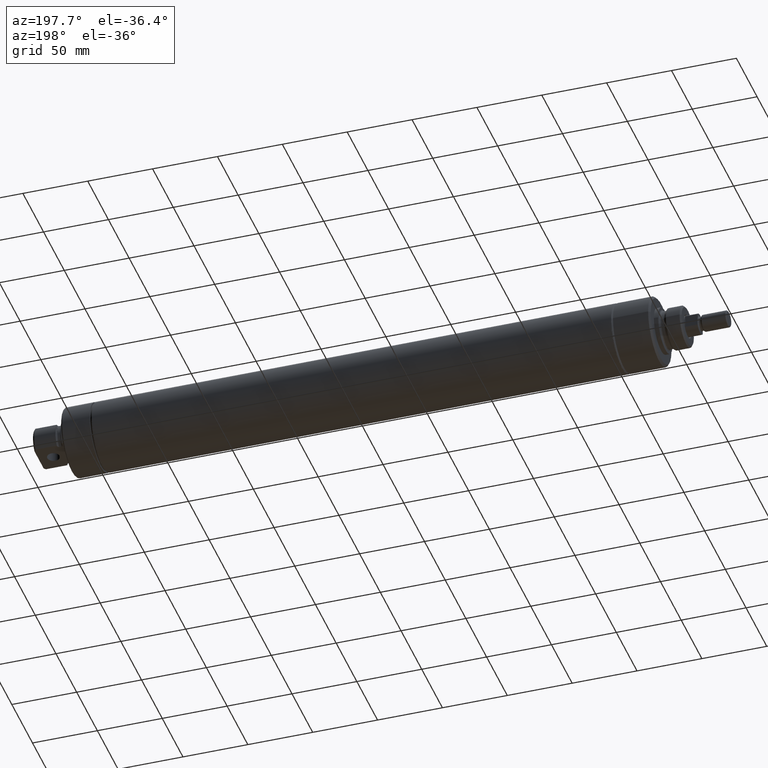
[diagram: clean part render]
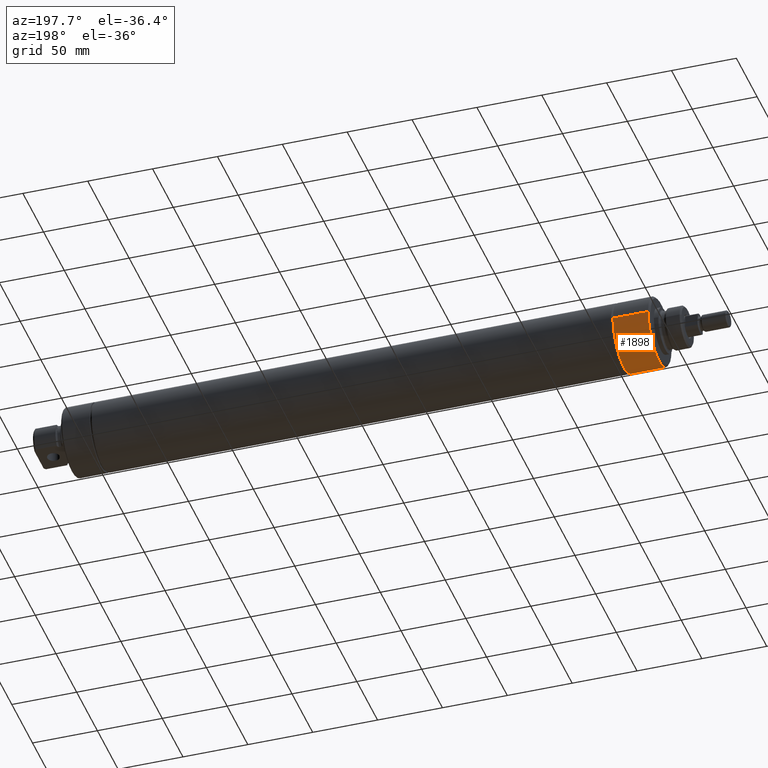
[diagram: same view with one face highlighted and labeled with its STEP entity id]
A machine part, auxiliary view. The second image highlights one B-rep face of the part: STEP entity #1898.
In plain terms, the highlighted cylindrical surface (edge-blend (fillet) strip) has radius 26.543 mm, axis along (1, 0, 0).
Its self-contained STEP definition (entity closure, byte-faithful):
#66 = AXIS2_PLACEMENT_3D ( 'NONE', #5237, #1832, #993 ) ;
#79 = CIRCLE ( 'NONE', #536, 26.54299999999999926 ) ;
#359 = DIRECTION ( 'NONE',  ( 0.000000000000000000, 1.000000000000000000, -6.123233995736766036E-17 ) ) ;
#536 = AXIS2_PLACEMENT_3D ( 'NONE', #1211, #3681, #3199 ) ;
#559 = CARTESIAN_POINT ( 'NONE',  ( 22.09799999999999898, 0.000000000000000000, -26.54299999999999926 ) ) ;
#561 = DIRECTION ( 'NONE',  ( 1.000000000000000000, 0.000000000000000000, 0.000000000000000000 ) ) ;
#641 = ORIENTED_EDGE ( 'NONE', *, *, #3167, .T. ) ;
#816 = VERTEX_POINT ( 'NONE', #1741 ) ;
#862 = EDGE_CURVE ( 'NONE', #5462, #1008, #4026, .T. ) ;
#895 = LINE ( 'NONE', #3960, #4162 ) ;
#993 = DIRECTION ( 'NONE',  ( 0.000000000000000000, 0.000000000000000000, -1.000000000000000000 ) ) ;
#1008 = VERTEX_POINT ( 'NONE', #4201 ) ;
#1116 = EDGE_LOOP ( 'NONE', ( #2426, #641, #3101, #2368 ) ) ;
#1162 = DIRECTION ( 'NONE',  ( 1.000000000000000000, 0.000000000000000000, 0.000000000000000000 ) ) ;
#1211 = CARTESIAN_POINT ( 'NONE',  ( 22.09799999999999898, 0.000000000000000000, 0.000000000000000000 ) ) ;
#1609 = EDGE_CURVE ( 'NONE', #3744, #1008, #2479, .T. ) ;
#1618 = DIRECTION ( 'NONE',  ( 1.000000000000000000, 0.000000000000000000, 0.000000000000000000 ) ) ;
#1741 = CARTESIAN_POINT ( 'NONE',  ( 22.09799999999999187, 3.250579998976819458E-15, 26.54299999999999926 ) ) ;
#1832 = DIRECTION ( 'NONE',  ( 1.000000000000000000, 0.000000000000000000, 0.000000000000000000 ) ) ;
#1898 = ADVANCED_FACE ( 'NONE', ( #4519 ), #3666, .T. ) ;
#2355 = VECTOR ( 'NONE', #1162, 1000.000000000000000 ) ;
#2368 = ORIENTED_EDGE ( 'NONE', *, *, #1609, .F. ) ;
#2426 = ORIENTED_EDGE ( 'NONE', *, *, #2907, .F. ) ;
#2479 = CIRCLE ( 'NONE', #66, 26.54299999999999926 ) ;
#2907 = EDGE_CURVE ( 'NONE', #816, #3744, #895, .T. ) ;
#3101 = ORIENTED_EDGE ( 'NONE', *, *, #862, .T. ) ;
#3167 = EDGE_CURVE ( 'NONE', #816, #5462, #79, .T. ) ;
#3199 = DIRECTION ( 'NONE',  ( 0.000000000000000000, 0.000000000000000000, -1.000000000000000000 ) ) ;
#3496 = CARTESIAN_POINT ( 'NONE',  ( 49.19979999999998910, 3.250579998976819458E-15, 26.54299999999999926 ) ) ;
#3666 = CYLINDRICAL_SURFACE ( 'NONE', #5011, 26.54299999999999926 ) ;
#3681 = DIRECTION ( 'NONE',  ( 1.000000000000000000, 0.000000000000000000, 0.000000000000000000 ) ) ;
#3744 = VERTEX_POINT ( 'NONE', #3496 ) ;
#3960 = CARTESIAN_POINT ( 'NONE',  ( 22.09799999999999187, 3.250579998976819458E-15, 26.54299999999999926 ) ) ;
#4000 = CARTESIAN_POINT ( 'NONE',  ( 22.09799999999999898, 0.000000000000000000, -26.54299999999999926 ) ) ;
#4026 = LINE ( 'NONE', #4000, #2355 ) ;
#4162 = VECTOR ( 'NONE', #561, 1000.000000000000000 ) ;
#4201 = CARTESIAN_POINT ( 'NONE',  ( 49.19980000000000331, 0.000000000000000000, -26.54299999999999926 ) ) ;
#4519 = FACE_OUTER_BOUND ( 'NONE', #1116, .T. ) ;
#5011 = AXIS2_PLACEMENT_3D ( 'NONE', #5372, #1618, #359 ) ;
#5237 = CARTESIAN_POINT ( 'NONE',  ( 49.19980000000000331, 0.000000000000000000, 0.000000000000000000 ) ) ;
#5372 = CARTESIAN_POINT ( 'NONE',  ( 58.72480000000000189, 0.000000000000000000, 0.000000000000000000 ) ) ;
#5462 = VERTEX_POINT ( 'NONE', #559 ) ;